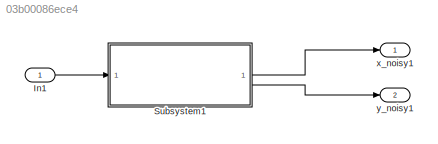
MODEL slx_03b00086ece4
KIND model
CONFIG AbsTol = auto
CONFIG EnableMultiTasking = off
CONFIG FixedStep = auto
CONFIG MaxStep = auto
CONFIG MinStep = auto
CONFIG RelTol = 1e-3
CONFIG SampleTimeConstraint = Unconstrained
CONFIG SolverName = VariableStepAuto
CONFIG StartTime = 0.0
CONFIG StopTime = 30
WORKSPACE source: mxarray member
WORKSPACE Vwaypoints = [0 0 20 10 40 20 60 20 80 10 100 0 ... (22 elements, 2x11)]
BLOCK [Inport] In1
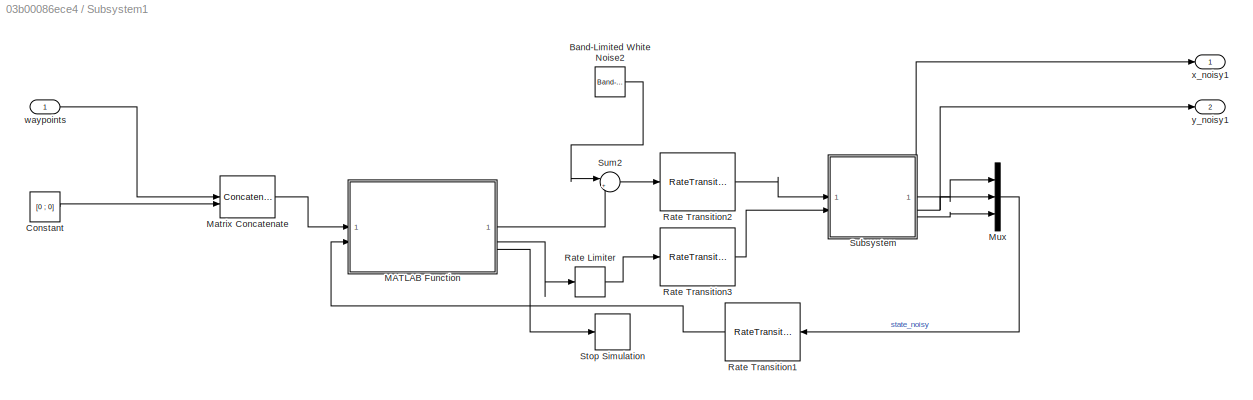
BLOCK [SubSystem] Subsystem1
BLOCK [Reference] Subsystem1/Band-Limited White Noise2  REF=simulink/Sources/Band-Limited
White Noise
  SourceBlock = simulink/Sources/Band-Limited\nWhite Noise
  SourceType = Band-Limited White Noise.
  Tag = noise_x
BLOCK [Constant] Subsystem1/Constant
  Value = [0 ; 0]
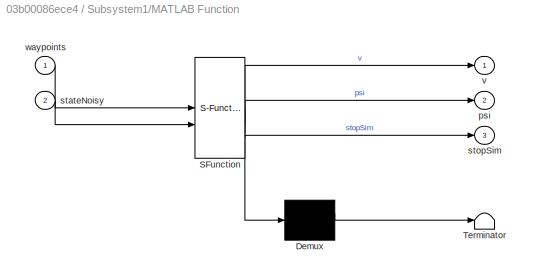
BLOCK [SubSystem] Subsystem1/MATLAB Function
  ErrorFcn = Stateflow.Translate.translate
  PermitHierarchicalResolution = ExplicitOnly
  SFBlockType = MATLAB Function
  TreatAsAtomicUnit = on
BLOCK [Demux] Subsystem1/MATLAB Function/ Demux 
  Outputs = 1
BLOCK [S-Function] Subsystem1/MATLAB Function/ SFunction 
  EnableBusSupport = on
  FunctionName = sf_sfun
  PortCounts = [2 4]
  SFcnIsStateOwnerBlock = off
  SFunctionDeploymentMode = off
  Tag = Stateflow S-Function 1
BLOCK [Terminator] Subsystem1/MATLAB Function/ Terminator 
BLOCK [Outport] Subsystem1/MATLAB Function/psi
  Port = 2
BLOCK [Inport] Subsystem1/MATLAB Function/stateNoisy
  Port = 2
BLOCK [Outport] Subsystem1/MATLAB Function/stopSim
  Port = 3
BLOCK [Outport] Subsystem1/MATLAB Function/v
BLOCK [Inport] Subsystem1/MATLAB Function/waypoints
BLOCK [Concatenate] Subsystem1/Matrix Concatenate
  ConcatenateDimension = 2
  Mode = Multidimensional array
BLOCK [Mux] Subsystem1/Mux
  DisplayOption = bar
  Inputs = 3
BLOCK [RateLimiter] Subsystem1/Rate Limiter
  FallingSlewLimit = -pi/4
  RisingSlewLimit = pi/4
  SampleTimeMode = inherited
BLOCK [RateTransition] Subsystem1/Rate Transition1
  OutPortSampleTime = 1/100
BLOCK [RateTransition] Subsystem1/Rate Transition2
  OutPortSampleTime = 1/1000
BLOCK [RateTransition] Subsystem1/Rate Transition3
  OutPortSampleTime = 1/1000
BLOCK [Stop] Subsystem1/Stop Simulation
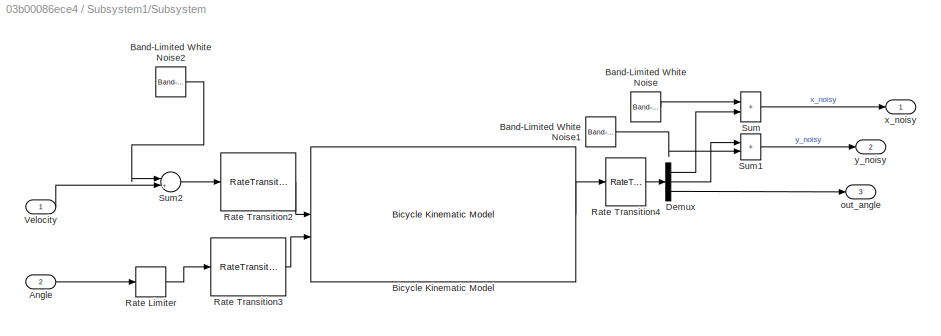
BLOCK [SubSystem] Subsystem1/Subsystem
BLOCK [Inport] Subsystem1/Subsystem/Angle
  Port = 2
BLOCK [Reference] Subsystem1/Subsystem/Band-Limited White Noise  REF=simulink/Sources/Band-Limited
White Noise
  SourceBlock = simulink/Sources/Band-Limited\nWhite Noise
  SourceType = Band-Limited White Noise.
  Tag = noise_x
BLOCK [Reference] Subsystem1/Subsystem/Band-Limited White Noise1  REF=simulink/Sources/Band-Limited
White Noise
  SourceBlock = simulink/Sources/Band-Limited\nWhite Noise
  SourceType = Band-Limited White Noise.
  Tag = noise_y
BLOCK [Reference] Subsystem1/Subsystem/Band-Limited White Noise2  REF=simulink/Sources/Band-Limited
White Noise
  SourceBlock = simulink/Sources/Band-Limited\nWhite Noise
  SourceType = Band-Limited White Noise.
  Tag = noise_x
BLOCK [Reference] Subsystem1/Subsystem/Bicycle Kinematic Model  REF=robotmobilelib/Bicycle Kinematic Model
  SourceBlock = robotmobilelib/Bicycle Kinematic Model
  SourceType = Bicycle Kinematic Model
BLOCK [Demux] Subsystem1/Subsystem/Demux
  Outputs = 3
BLOCK [RateLimiter] Subsystem1/Subsystem/Rate Limiter
  FallingSlewLimit = -pi/4
  RisingSlewLimit = pi/4
  SampleTimeMode = inherited
BLOCK [RateTransition] Subsystem1/Subsystem/Rate Transition2
  OutPortSampleTime = 1/1000
BLOCK [RateTransition] Subsystem1/Subsystem/Rate Transition3
  OutPortSampleTime = 1/1000
BLOCK [RateTransition] Subsystem1/Subsystem/Rate Transition4
  OutPortSampleTime = 1/1000
BLOCK [Sum] Subsystem1/Subsystem/Sum
  IconShape = rectangular
  Inputs = |++
BLOCK [Sum] Subsystem1/Subsystem/Sum1
  IconShape = rectangular
  Inputs = |++
BLOCK [Sum] Subsystem1/Subsystem/Sum2
  Inputs = |++
BLOCK [Inport] Subsystem1/Subsystem/Velocity
BLOCK [Outport] Subsystem1/Subsystem/out_angle
  Port = 3
BLOCK [Outport] Subsystem1/Subsystem/x_noisy
BLOCK [Outport] Subsystem1/Subsystem/y_noisy
  Port = 2
BLOCK [Sum] Subsystem1/Sum2
  Inputs = |++
BLOCK [Inport] Subsystem1/waypoints
  PortDimensions = [2 11]
BLOCK [Outport] Subsystem1/x_noisy1
BLOCK [Outport] Subsystem1/y_noisy1
  Port = 2
BLOCK [Outport] x_noisy1
BLOCK [Outport] y_noisy1
  Port = 2
LINE In1:1 -> Subsystem1:1
LINE Subsystem1/Band-Limited White Noise2:1 -> Subsystem1/Sum2:1
LINE Subsystem1/Constant:1 -> Subsystem1/Matrix Concatenate:2
LINE Subsystem1/MATLAB Function:1 -> Subsystem1/Sum2:2
LINE Subsystem1/MATLAB Function:2 -> Subsystem1/Rate Limiter:1
LINE Subsystem1/MATLAB Function:3 -> Subsystem1/Stop Simulation:1
LINE Subsystem1/Matrix Concatenate:1 -> Subsystem1/MATLAB Function:1
LINE Subsystem1/Mux:1 -> Subsystem1/Rate Transition1:1
LINE Subsystem1/Rate Limiter:1 -> Subsystem1/Rate Transition3:1
LINE Subsystem1/Rate Transition1:1 -> Subsystem1/MATLAB Function:2
LINE Subsystem1/Rate Transition2:1 -> Subsystem1/Subsystem:1
LINE Subsystem1/Rate Transition3:1 -> Subsystem1/Subsystem:2
LINE Subsystem1/Subsystem/Angle:1 -> Subsystem1/Subsystem/Rate Limiter:1
LINE Subsystem1/Subsystem/Band-Limited White Noise1:1 -> Subsystem1/Subsystem/Sum1:2
LINE Subsystem1/Subsystem/Band-Limited White Noise2:1 -> Subsystem1/Subsystem/Sum2:1
LINE Subsystem1/Subsystem/Band-Limited White Noise:1 -> Subsystem1/Subsystem/Sum:1
LINE Subsystem1/Subsystem/Bicycle Kinematic Model:1 -> Subsystem1/Subsystem/Rate Transition4:1
LINE Subsystem1/Subsystem/Demux:1 -> Subsystem1/Subsystem/Sum:2
LINE Subsystem1/Subsystem/Demux:2 -> Subsystem1/Subsystem/Sum1:1
LINE Subsystem1/Subsystem/Demux:3 -> Subsystem1/Subsystem/out_angle:1
LINE Subsystem1/Subsystem/Rate Limiter:1 -> Subsystem1/Subsystem/Rate Transition3:1
LINE Subsystem1/Subsystem/Rate Transition2:1 -> Subsystem1/Subsystem/Bicycle Kinematic Model:1
LINE Subsystem1/Subsystem/Rate Transition3:1 -> Subsystem1/Subsystem/Bicycle Kinematic Model:2
LINE Subsystem1/Subsystem/Rate Transition4:1 -> Subsystem1/Subsystem/Demux:1
LINE Subsystem1/Subsystem/Sum1:1 -> Subsystem1/Subsystem/y_noisy:1
LINE Subsystem1/Subsystem/Sum2:1 -> Subsystem1/Subsystem/Rate Transition2:1
LINE Subsystem1/Subsystem/Sum:1 -> Subsystem1/Subsystem/x_noisy:1
LINE Subsystem1/Subsystem/Velocity:1 -> Subsystem1/Subsystem/Sum2:2
NET Subsystem1/Subsystem:1 -> Subsystem1/Mux:1, Subsystem1/x_noisy1:1
NET Subsystem1/Subsystem:2 -> Subsystem1/Mux:2, Subsystem1/y_noisy1:1
LINE Subsystem1/Subsystem:3 -> Subsystem1/Mux:3
LINE Subsystem1/Sum2:1 -> Subsystem1/Rate Transition2:1
LINE Subsystem1/waypoints:1 -> Subsystem1/Matrix Concatenate:1
LINE Subsystem1:1 -> x_noisy1:1
LINE Subsystem1:2 -> y_noisy1:1
note: NET lines group one-source signal fan-out (src -> all destinations, sorted); 1:1 wires keep LINE
CHART Subsystem1/MATLAB Function states=1 transitions=1
  STATE_LABEL 'eML_blk_kernel()'
  STATE_LABEL 'SCRIPT:\nfunction [v, psi, stopSim] = controlPI( waypoints,  stateNoisy)\n    % CONTROLPI: Controlador PI de la orientación + índice persistente\n    % para avanzar entre varios waypoints.\n    %\n    % Entradas:\n    %   - waypoints: matriz 2xN con las coordenadas [x; y] de los puntos.\n    %   - stateNoisy: vector [x_noisy, y_noisy, theta] con ruido.\n    %\n    % Salidas:\n    %   - v: velocidad del vehí...<+2594ch>'
CHART  states=0 transitions=0
